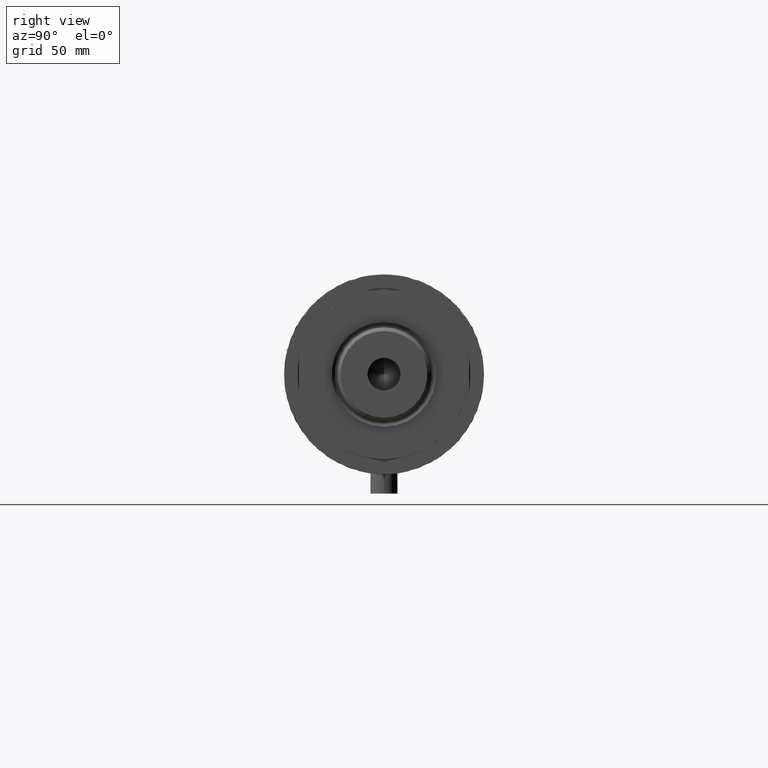
[diagram: clean part render]
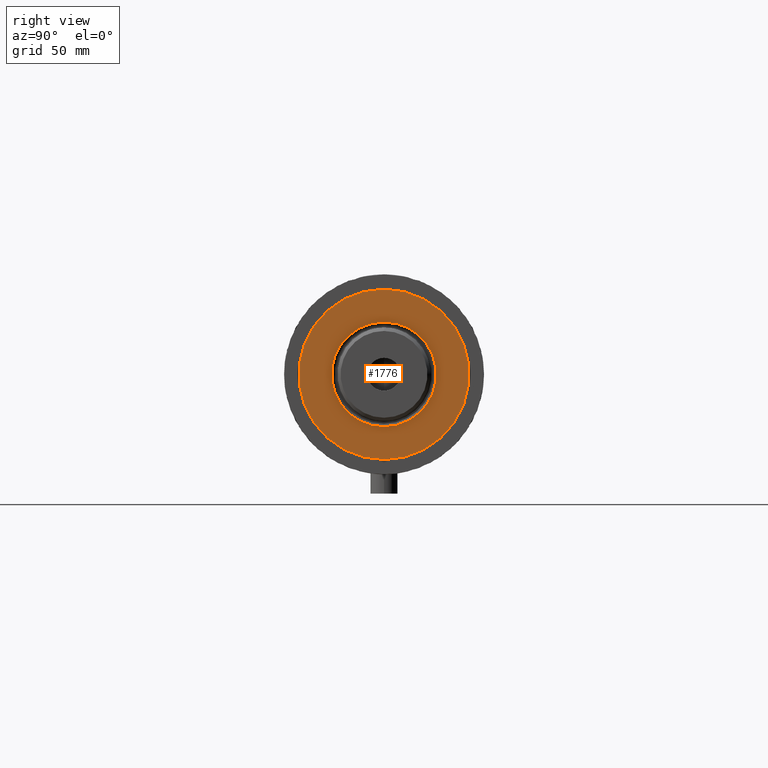
[diagram: same view with one face highlighted and labeled with its STEP entity id]
A machine part, right view. The second image highlights one B-rep face of the part: STEP entity #1776.
In plain terms, the highlighted planar face has unit normal (1, 0, -0).
Its self-contained STEP definition (entity closure, byte-faithful):
#180 = PLANE ( 'NONE',  #3696 ) ;
#676 = CARTESIAN_POINT ( 'NONE',  ( 23.05000000000002913, 0.000000000000000000, 59.89999999999999147 ) ) ;
#691 = ORIENTED_EDGE ( 'NONE', *, *, #3660, .T. ) ;
#746 = DIRECTION ( 'NONE',  ( -0.000000000000000000, -0.000000000000000000, -1.000000000000000000 ) ) ;
#753 = DIRECTION ( 'NONE',  ( 0.000000000000000000, 0.000000000000000000, 1.000000000000000000 ) ) ;
#962 = DIRECTION ( 'NONE',  ( 0.000000000000000000, 0.000000000000000000, 1.000000000000000000 ) ) ;
#1041 = AXIS2_PLACEMENT_3D ( 'NONE', #3675, #4846, #3370 ) ;
#1046 = CIRCLE ( 'NONE', #1445, 23.05000000000002913 ) ;
#1055 = EDGE_CURVE ( 'NONE', #2707, #4232, #1271, .T. ) ;
#1271 = CIRCLE ( 'NONE', #4395, 37.50000000000000711 ) ;
#1305 = CARTESIAN_POINT ( 'NONE',  ( 0.000000000000000000, 0.000000000000000000, 59.89999999999999147 ) ) ;
#1339 = AXIS2_PLACEMENT_3D ( 'NONE', #1305, #2078, #2792 ) ;
#1445 = AXIS2_PLACEMENT_3D ( 'NONE', #4107, #746, #3736 ) ;
#1633 = EDGE_LOOP ( 'NONE', ( #4592, #4036 ) ) ;
#1687 = EDGE_CURVE ( 'NONE', #2472, #1696, #3374, .T. ) ;
#1696 = VERTEX_POINT ( 'NONE', #3142 ) ;
#1776 = ADVANCED_FACE ( 'NONE', ( #3161, #2033 ), #180, .T. ) ;
#1866 = CARTESIAN_POINT ( 'NONE',  ( 0.000000000000000000, 0.000000000000000000, 59.89999999999999147 ) ) ;
#2003 = CARTESIAN_POINT ( 'NONE',  ( 37.50000000000000711, 4.592425496802575156E-15, 59.89999999999999147 ) ) ;
#2033 = FACE_OUTER_BOUND ( 'NONE', #3287, .T. ) ;
#2078 = DIRECTION ( 'NONE',  ( -0.000000000000000000, -0.000000000000000000, -1.000000000000000000 ) ) ;
#2454 = DIRECTION ( 'NONE',  ( 1.000000000000000000, 0.000000000000000000, -0.000000000000000000 ) ) ;
#2472 = VERTEX_POINT ( 'NONE', #676 ) ;
#2523 = CIRCLE ( 'NONE', #1041, 37.50000000000000711 ) ;
#2707 = VERTEX_POINT ( 'NONE', #2003 ) ;
#2792 = DIRECTION ( 'NONE',  ( 1.000000000000000000, 0.000000000000000000, 0.000000000000000000 ) ) ;
#2814 = CARTESIAN_POINT ( 'NONE',  ( 0.000000000000000000, 0.000000000000000000, 59.89999999999999147 ) ) ;
#3142 = CARTESIAN_POINT ( 'NONE',  ( -23.05000000000002913, 2.822810872034651791E-15, 59.89999999999999147 ) ) ;
#3161 = FACE_BOUND ( 'NONE', #1633, .T. ) ;
#3180 = CARTESIAN_POINT ( 'NONE',  ( -37.50000000000000711, 0.000000000000000000, 59.89999999999999147 ) ) ;
#3287 = EDGE_LOOP ( 'NONE', ( #691, #4062 ) ) ;
#3326 = DIRECTION ( 'NONE',  ( 1.000000000000000000, 0.000000000000000000, 0.000000000000000000 ) ) ;
#3370 = DIRECTION ( 'NONE',  ( 1.000000000000000000, 0.000000000000000000, 0.000000000000000000 ) ) ;
#3374 = CIRCLE ( 'NONE', #1339, 23.05000000000002913 ) ;
#3660 = EDGE_CURVE ( 'NONE', #4232, #2707, #2523, .T. ) ;
#3675 = CARTESIAN_POINT ( 'NONE',  ( 0.000000000000000000, 0.000000000000000000, 59.89999999999999147 ) ) ;
#3696 = AXIS2_PLACEMENT_3D ( 'NONE', #2814, #962, #2454 ) ;
#3736 = DIRECTION ( 'NONE',  ( 1.000000000000000000, 0.000000000000000000, 0.000000000000000000 ) ) ;
#3901 = EDGE_CURVE ( 'NONE', #1696, #2472, #1046, .T. ) ;
#4036 = ORIENTED_EDGE ( 'NONE', *, *, #3901, .T. ) ;
#4062 = ORIENTED_EDGE ( 'NONE', *, *, #1055, .T. ) ;
#4107 = CARTESIAN_POINT ( 'NONE',  ( 0.000000000000000000, 0.000000000000000000, 59.89999999999999147 ) ) ;
#4232 = VERTEX_POINT ( 'NONE', #3180 ) ;
#4395 = AXIS2_PLACEMENT_3D ( 'NONE', #1866, #753, #3326 ) ;
#4592 = ORIENTED_EDGE ( 'NONE', *, *, #1687, .T. ) ;
#4846 = DIRECTION ( 'NONE',  ( 0.000000000000000000, 0.000000000000000000, 1.000000000000000000 ) ) ;